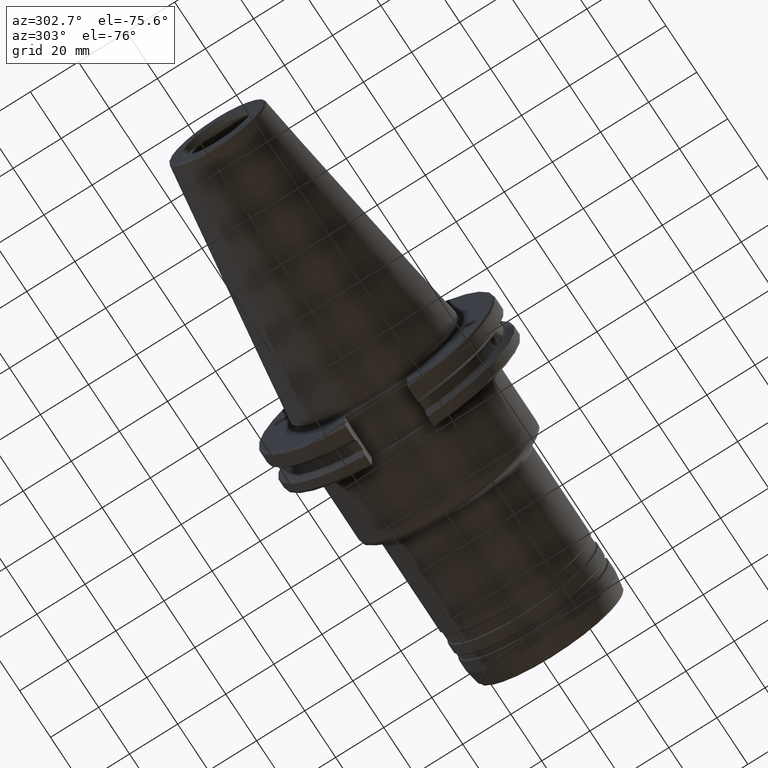
[diagram: clean part render]
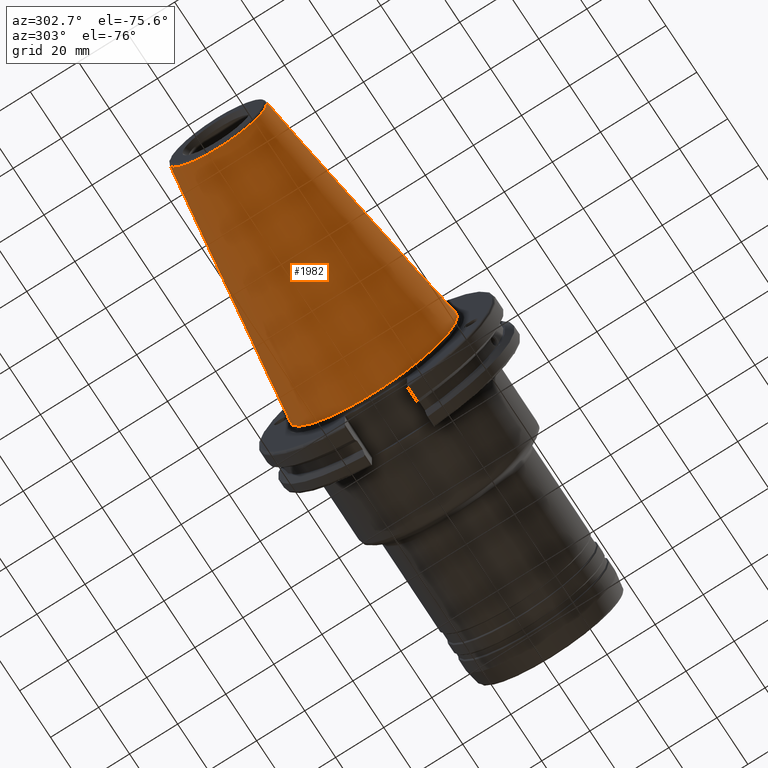
[diagram: same view with one face highlighted and labeled with its STEP entity id]
A machine part, auxiliary view. The second image highlights one B-rep face of the part: STEP entity #1982.
In plain terms, the highlighted conical surface has half-angle 8.297 deg.
Its self-contained STEP definition (entity closure, byte-faithful):
#254=LINE('',#3911,#361);
#361=VECTOR('',#2759,27.5166666666666);
#395=CONICAL_SURFACE('',#2231,27.5166666666666,0.14481249823894);
#479=FACE_OUTER_BOUND('',#603,.T.);
#603=EDGE_LOOP('',(#1727,#1728,#1729,#1730,#1731));
#748=CIRCLE('',#2225,20.233121911427);
#749=CIRCLE('',#2226,20.233121911427);
#753=CIRCLE('',#2232,34.925);
#953=VERTEX_POINT('',#3898);
#954=VERTEX_POINT('',#3899);
#957=VERTEX_POINT('',#3909);
#1229=EDGE_CURVE('',#953,#954,#748,.T.);
#1230=EDGE_CURVE('',#954,#953,#749,.T.);
#1234=EDGE_CURVE('',#957,#957,#753,.T.);
#1235=EDGE_CURVE('',#957,#954,#254,.T.);
#1727=ORIENTED_EDGE('',*,*,#1234,.F.);
#1728=ORIENTED_EDGE('',*,*,#1235,.T.);
#1729=ORIENTED_EDGE('',*,*,#1229,.F.);
#1730=ORIENTED_EDGE('',*,*,#1230,.F.);
#1731=ORIENTED_EDGE('',*,*,#1235,.F.);
#1982=ADVANCED_FACE('',(#479),#395,.T.);
#2225=AXIS2_PLACEMENT_3D('',#3900,#2743,#2744);
#2226=AXIS2_PLACEMENT_3D('',#3901,#2745,#2746);
#2231=AXIS2_PLACEMENT_3D('',#3908,#2755,#2756);
#2232=AXIS2_PLACEMENT_3D('',#3910,#2757,#2758);
#2743=DIRECTION('center_axis',(-1.,0.,0.));
#2744=DIRECTION('ref_axis',(0.,-1.,3.06161699786838E-17));
#2745=DIRECTION('center_axis',(-1.,0.,0.));
#2746=DIRECTION('ref_axis',(0.,-1.,3.06161699786838E-17));
#2755=DIRECTION('center_axis',(1.,0.,0.));
#2756=DIRECTION('ref_axis',(0.,1.,0.));
#2757=DIRECTION('center_axis',(1.,0.,0.));
#2758=DIRECTION('ref_axis',(0.,0.,-1.));
#2759=DIRECTION('',(-0.989532981063281,0.144306893071729,1.76724974695192E-17));
#3898=CARTESIAN_POINT('',(-100.744306893072,-2.47784279855872E-15,20.233121911427));
#3899=CARTESIAN_POINT('',(-100.744306893072,-20.233121911427,-2.47784279855872E-15));
#3900=CARTESIAN_POINT('Origin',(-100.744306893072,0.,-3.09730349819841E-15));
#3901=CARTESIAN_POINT('Origin',(-100.744306893072,0.,-3.09730349819841E-15));
#3908=CARTESIAN_POINT('Origin',(-50.8,0.,0.));
#3909=CARTESIAN_POINT('',(-8.88178419700125E-15,-34.925,-4.27707894602213E-15));
#3910=CARTESIAN_POINT('Origin',(0.,0.,0.));
#3911=CARTESIAN_POINT('',(-50.8,-27.5166666666666,-3.3698197756538E-15));